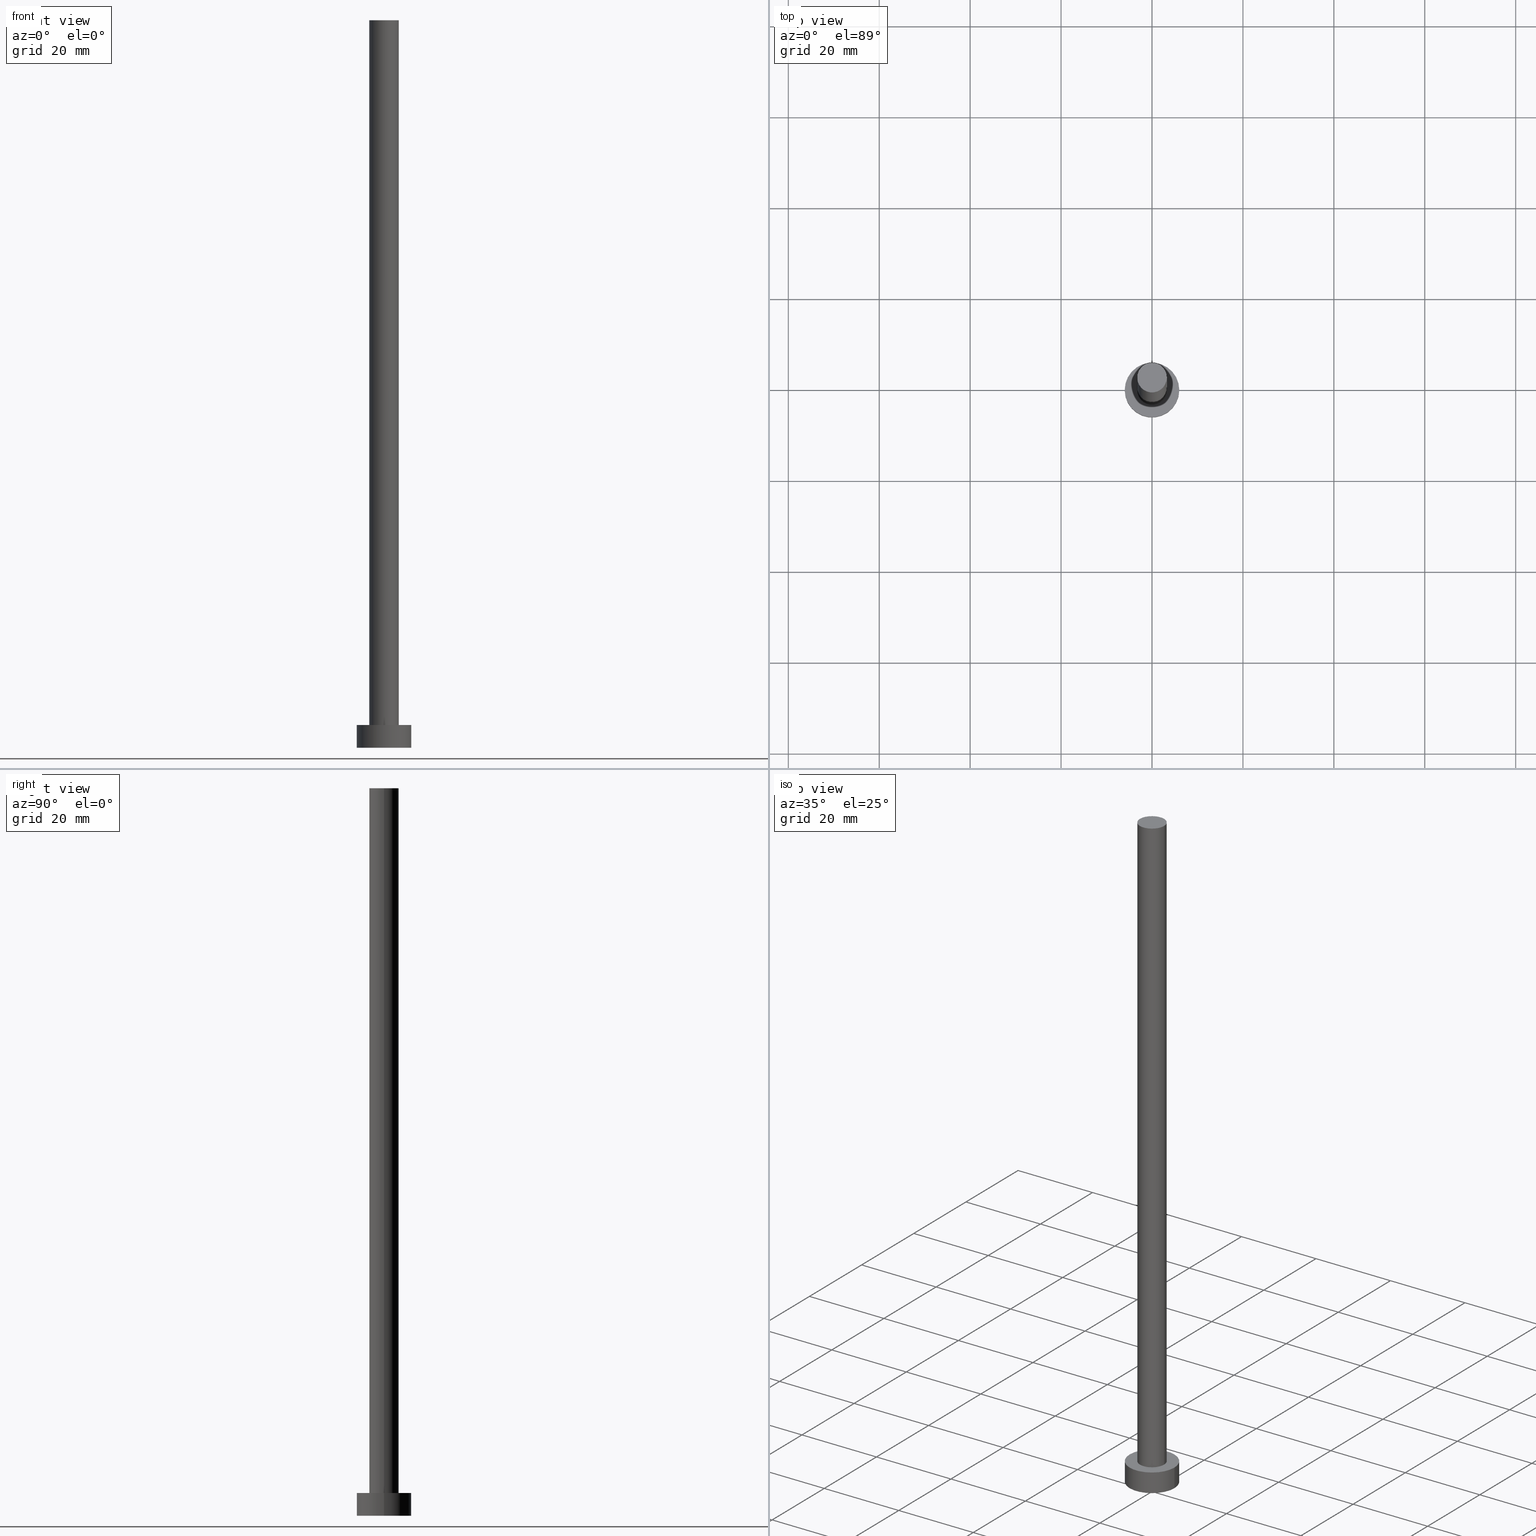
[diagram: canonical four-view strip — front | top / right | iso, engineering-drawing reading convention]
A machine part, canonical four-view strip (front | top / right | iso — engineering-drawing reading convention). The complete STEP part file that produces these views, byte-faithful:
ISO-10303-21;
HEADER;
FILE_DESCRIPTION (( 'STEP AP203' ),
    '1' );
FILE_NAME ('41d8.STEP',
    '2023-02-13T11:48:46',
    ( '' ),
    ( '' ),
    'SwSTEP 2.0',
    'SolidWorks 2019',
    '' );
FILE_SCHEMA (( 'CONFIG_CONTROL_DESIGN' ));
ENDSEC;

DATA;
#1 =( GEOMETRIC_REPRESENTATION_CONTEXT ( 3 ) GLOBAL_UNCERTAINTY_ASSIGNED_CONTEXT ( ( #184 ) ) GLOBAL_UNIT_ASSIGNED_CONTEXT ( ( #197, #194, #140 ) ) REPRESENTATION_CONTEXT ( 'NONE', 'WORKASPACE' ) );
#2 = FACE_OUTER_BOUND ( 'NONE', #61, .T. ) ;
#3 = DIRECTION ( 'NONE',  ( 0.000000000000000000, 0.000000000000000000, 1.000000000000000000 ) ) ;
#4 = CC_DESIGN_PERSON_AND_ORGANIZATION_ASSIGNMENT ( #215, #93, ( #34 ) ) ;
#5 = ADVANCED_BREP_SHAPE_REPRESENTATION ( '41d8', ( #25, #250 ), #1 ) ;
#6 = CARTESIAN_POINT ( 'NONE',  ( 6.000000000000000888, 7.347880794884120722E-16, 0.000000000000000000 ) ) ;
#7 = CALENDAR_DATE ( 2023, 13, 2 ) ;
#8 = CARTESIAN_POINT ( 'NONE',  ( -6.000000000000000888, 0.000000000000000000, 0.000000000000000000 ) ) ;
#9 = APPROVAL ( #39, 'NEUR�EN�' ) ;
#10 = LOCAL_TIME ( 12, 48, 46.00000000000000000, #71 ) ;
#11 = CARTESIAN_POINT ( 'NONE',  ( 0.000000000000000000, 0.000000000000000000, 160.0000000000000000 ) ) ;
#12 = DIRECTION ( 'NONE',  ( 1.000000000000000000, 0.000000000000000000, 0.000000000000000000 ) ) ;
#13 = DIRECTION ( 'NONE',  ( -0.000000000000000000, -0.000000000000000000, -1.000000000000000000 ) ) ;
#14 = APPLICATION_PROTOCOL_DEFINITION ( 'international standard', 'config_control_design', 1994, #239 ) ;
#15 = EDGE_CURVE ( 'NONE', #114, #231, #133, .T. ) ;
#16 = LINE ( 'NONE', #176, #105 ) ;
#17 = AXIS2_PLACEMENT_3D ( 'NONE', #103, #232, #22 ) ;
#18 = CIRCLE ( 'NONE', #144, 6.000000000000000888 ) ;
#19 = ORGANIZATION ( 'NEUR�EN�', 'NEUR�EN�', '' ) ;
#20 = DIRECTION ( 'NONE',  ( -0.000000000000000000, -0.000000000000000000, -1.000000000000000000 ) ) ;
#21 = APPROVAL_ROLE ( '' ) ;
#22 = DIRECTION ( 'NONE',  ( 1.000000000000000000, 0.000000000000000000, 0.000000000000000000 ) ) ;
#23 = ORIENTED_EDGE ( 'NONE', *, *, #65, .T. ) ;
#24 = ORIENTED_EDGE ( 'NONE', *, *, #75, .F. ) ;
#25 = MANIFOLD_SOLID_BREP ( 'P�idat vysunut�m3', #175 ) ;
#26 = DIRECTION ( 'NONE',  ( -1.000000000000000000, 0.000000000000000000, 0.000000000000000000 ) ) ;
#27 = CC_DESIGN_PERSON_AND_ORGANIZATION_ASSIGNMENT ( #185, #203, ( #70 ) ) ;
#28 = CIRCLE ( 'NONE', #124, 3.250000000000000444 ) ;
#29 = COORDINATED_UNIVERSAL_TIME_OFFSET ( 1, 0, .AHEAD. ) ;
#30 = DIRECTION ( 'NONE',  ( -0.000000000000000000, -0.000000000000000000, -1.000000000000000000 ) ) ;
#31 = CIRCLE ( 'NONE', #249, 3.250000000000000444 ) ;
#32 = CARTESIAN_POINT ( 'NONE',  ( 0.000000000000000000, 0.000000000000000000, 160.0000000000000000 ) ) ;
#33 = DIRECTION ( 'NONE',  ( 0.000000000000000000, 0.000000000000000000, 1.000000000000000000 ) ) ;
#34 = PRODUCT_DEFINITION_FORMATION_WITH_SPECIFIED_SOURCE ( 'LIBOVOLN�', '', #36, .NOT_KNOWN. ) ;
#35 = ADVANCED_FACE ( 'NONE', ( #97 ), #212, .T. ) ;
#36 = PRODUCT ( '41d8', '41d8', '', ( #211 ) ) ;
#37 = DATE_AND_TIME ( #252, #178 ) ;
#38 = ORIENTED_EDGE ( 'NONE', *, *, #86, .F. ) ;
#39 = APPROVAL_STATUS ( 'not_yet_approved' ) ;
#40 = VERTEX_POINT ( 'NONE', #66 ) ;
#41 = ORIENTED_EDGE ( 'NONE', *, *, #46, .F. ) ;
#42 = COORDINATED_UNIVERSAL_TIME_OFFSET ( 1, 0, .AHEAD. ) ;
#43 = DIRECTION ( 'NONE',  ( 1.000000000000000000, 0.000000000000000000, -0.000000000000000000 ) ) ;
#44 = AXIS2_PLACEMENT_3D ( 'NONE', #130, #52, #221 ) ;
#45 = PERSON_AND_ORGANIZATION_ROLE ( 'creator' ) ;
#46 = EDGE_CURVE ( 'NONE', #114, #241, #254, .T. ) ;
#47 = CARTESIAN_POINT ( 'NONE',  ( 0.000000000000000000, 0.000000000000000000, 160.0000000000000000 ) ) ;
#48 = EDGE_CURVE ( 'NONE', #84, #127, #149, .T. ) ;
#49 = DATE_TIME_ROLE ( 'classification_date' ) ;
#50 = DIRECTION ( 'NONE',  ( 0.000000000000000000, 0.000000000000000000, 1.000000000000000000 ) ) ;
#51 = CC_DESIGN_APPROVAL ( #9, ( #34 ) ) ;
#52 = DIRECTION ( 'NONE',  ( 0.000000000000000000, 0.000000000000000000, 1.000000000000000000 ) ) ;
#53 = ORIENTED_EDGE ( 'NONE', *, *, #151, .F. ) ;
#54 = DIRECTION ( 'NONE',  ( -1.000000000000000000, 0.000000000000000000, 0.000000000000000000 ) ) ;
#55 = DIRECTION ( 'NONE',  ( 0.000000000000000000, 0.000000000000000000, 1.000000000000000000 ) ) ;
#56 = CARTESIAN_POINT ( 'NONE',  ( 3.250000000000000444, 3.980102097228898231E-16, 5.000000000000000000 ) ) ;
#57 = CARTESIAN_POINT ( 'NONE',  ( -6.000000000000000888, 0.000000000000000000, 5.000000000000000000 ) ) ;
#58 = PERSON_AND_ORGANIZATION ( #136, #19 ) ;
#59 = AXIS2_PLACEMENT_3D ( 'NONE', #112, #223, #198 ) ;
#60 = ADVANCED_FACE ( 'NONE', ( #188 ), #207, .T. ) ;
#61 = EDGE_LOOP ( 'NONE', ( #119, #98, #213, #154 ) ) ;
#62 = APPROVAL_DATE_TIME ( #234, #181 ) ;
#63 = CYLINDRICAL_SURFACE ( 'NONE', #126, 3.250000000000000444 ) ;
#64 = APPROVAL_ROLE ( '' ) ;
#65 = EDGE_CURVE ( 'NONE', #241, #248, #18, .T. ) ;
#66 = CARTESIAN_POINT ( 'NONE',  ( -3.250000000000000444, 0.000000000000000000, 5.000000000000000000 ) ) ;
#67 = DATE_AND_TIME ( #110, #79 ) ;
#68 = VERTEX_POINT ( 'NONE', #56 ) ;
#69 = AXIS2_PLACEMENT_3D ( 'NONE', #229, #3, #89 ) ;
#70 = SECURITY_CLASSIFICATION ( '', '', #128 ) ;
#71 = COORDINATED_UNIVERSAL_TIME_OFFSET ( 1, 0, .AHEAD. ) ;
#72 = PRODUCT_DEFINITION_SHAPE ( 'NONE', 'NONE',  #156 ) ;
#73 = FACE_OUTER_BOUND ( 'NONE', #95, .T. ) ;
#74 = CARTESIAN_POINT ( 'NONE',  ( 0.000000000000000000, 0.000000000000000000, 0.000000000000000000 ) ) ;
#75 = EDGE_CURVE ( 'NONE', #84, #40, #16, .T. ) ;
#76 = CYLINDRICAL_SURFACE ( 'NONE', #116, 6.000000000000000888 ) ;
#77 = CC_DESIGN_DATE_AND_TIME_ASSIGNMENT ( #67, #166, ( #156 ) ) ;
#78 = PLANE ( 'NONE',  #164 ) ;
#79 = LOCAL_TIME ( 12, 48, 46.00000000000000000, #238 ) ;
#80 = DIRECTION ( 'NONE',  ( 0.000000000000000000, 0.000000000000000000, 1.000000000000000000 ) ) ;
#81 = PERSON_AND_ORGANIZATION ( #136, #19 ) ;
#82 = COORDINATED_UNIVERSAL_TIME_OFFSET ( 1, 0, .AHEAD. ) ;
#83 = APPROVAL_PERSON_ORGANIZATION ( #118, #181, #64 ) ;
#84 = VERTEX_POINT ( 'NONE', #222 ) ;
#85 = CARTESIAN_POINT ( 'NONE',  ( -6.000000000000000888, 0.000000000000000000, 5.000000000000000000 ) ) ;
#86 = EDGE_CURVE ( 'NONE', #127, #84, #31, .T. ) ;
#87 = DIRECTION ( 'NONE',  ( 1.000000000000000000, 0.000000000000000000, 0.000000000000000000 ) ) ;
#88 = AXIS2_PLACEMENT_3D ( 'NONE', #74, #50, #247 ) ;
#89 = DIRECTION ( 'NONE',  ( 1.000000000000000000, 0.000000000000000000, 0.000000000000000000 ) ) ;
#90 = CC_DESIGN_PERSON_AND_ORGANIZATION_ASSIGNMENT ( #81, #210, ( #36 ) ) ;
#91 = AXIS2_PLACEMENT_3D ( 'NONE', #109, #235, #43 ) ;
#92 = APPROVAL_PERSON_ORGANIZATION ( #243, #217, #199 ) ;
#93 = PERSON_AND_ORGANIZATION_ROLE ( 'design_supplier' ) ;
#94 = CARTESIAN_POINT ( 'NONE',  ( 0.000000000000000000, 0.000000000000000000, 0.000000000000000000 ) ) ;
#95 = EDGE_LOOP ( 'NONE', ( #237, #226 ) ) ;
#96 = EDGE_CURVE ( 'NONE', #231, #114, #142, .T. ) ;
#97 = FACE_OUTER_BOUND ( 'NONE', #137, .T. ) ;
#98 = ORIENTED_EDGE ( 'NONE', *, *, #48, .F. ) ;
#99 = AXIS2_PLACEMENT_3D ( 'NONE', #225, #55, #12 ) ;
#100 = ORIENTED_EDGE ( 'NONE', *, *, #251, .T. ) ;
#101 = DIRECTION ( 'NONE',  ( 1.000000000000000000, 0.000000000000000000, 0.000000000000000000 ) ) ;
#102 = CC_DESIGN_DATE_AND_TIME_ASSIGNMENT ( #150, #49, ( #70 ) ) ;
#103 = CARTESIAN_POINT ( 'NONE',  ( 0.000000000000000000, 0.000000000000000000, 160.0000000000000000 ) ) ;
#104 = ORIENTED_EDGE ( 'NONE', *, *, #120, .T. ) ;
#105 = VECTOR ( 'NONE', #13, 1000.000000000000000 ) ;
#106 = CC_DESIGN_SECURITY_CLASSIFICATION ( #70, ( #34 ) ) ;
#107 = CARTESIAN_POINT ( 'NONE',  ( 3.250000000000000444, 3.980102097228898231E-16, 160.0000000000000000 ) ) ;
#108 = ORIENTED_EDGE ( 'NONE', *, *, #143, .F. ) ;
#109 = CARTESIAN_POINT ( 'NONE',  ( 0.000000000000000000, 0.000000000000000000, 160.0000000000000000 ) ) ;
#110 = CALENDAR_DATE ( 2023, 13, 2 ) ;
#111 = AXIS2_PLACEMENT_3D ( 'NONE', #134, #220, #206 ) ;
#112 = CARTESIAN_POINT ( 'NONE',  ( 0.000000000000000000, 0.000000000000000000, 5.000000000000000000 ) ) ;
#113 = DATE_AND_TIME ( #7, #161 ) ;
#114 = VERTEX_POINT ( 'NONE', #85 ) ;
#115 = DIRECTION ( 'NONE',  ( 0.000000000000000000, 0.000000000000000000, 1.000000000000000000 ) ) ;
#116 = AXIS2_PLACEMENT_3D ( 'NONE', #173, #30, #54 ) ;
#117 = EDGE_LOOP ( 'NONE', ( #204, #53 ) ) ;
#118 = PERSON_AND_ORGANIZATION ( #136, #19 ) ;
#119 = ORIENTED_EDGE ( 'NONE', *, *, #120, .F. ) ;
#120 = EDGE_CURVE ( 'NONE', #127, #68, #216, .T. ) ;
#121 = DIRECTION ( 'NONE',  ( -0.000000000000000000, -0.000000000000000000, -1.000000000000000000 ) ) ;
#122 = PERSON_AND_ORGANIZATION ( #136, #19 ) ;
#123 = VECTOR ( 'NONE', #20, 1000.000000000000000 ) ;
#124 = AXIS2_PLACEMENT_3D ( 'NONE', #214, #163, #87 ) ;
#125 = APPROVAL_STATUS ( 'not_yet_approved' ) ;
#126 = AXIS2_PLACEMENT_3D ( 'NONE', #47, #121, #26 ) ;
#127 = VERTEX_POINT ( 'NONE', #107 ) ;
#128 = SECURITY_CLASSIFICATION_LEVEL ( 'unclassified' ) ;
#129 = DIRECTION ( 'NONE',  ( -0.000000000000000000, -0.000000000000000000, -1.000000000000000000 ) ) ;
#130 = CARTESIAN_POINT ( 'NONE',  ( 0.000000000000000000, 0.000000000000000000, 0.000000000000000000 ) ) ;
#131 = EDGE_CURVE ( 'NONE', #40, #68, #28, .T. ) ;
#132 = EDGE_LOOP ( 'NONE', ( #38, #104, #174, #24 ) ) ;
#133 = CIRCLE ( 'NONE', #99, 6.000000000000000888 ) ;
#134 = CARTESIAN_POINT ( 'NONE',  ( 0.000000000000000000, 0.000000000000000000, 5.000000000000000000 ) ) ;
#135 = PRODUCT_RELATED_PRODUCT_CATEGORY ( 'detail', '', ( #36 ) ) ;
#136 = PERSON ( 'NEUR�EN�', 'NEUR�EN�', 'NEUR�EN�', ('NEUR�EN�'), ('NEUR�EN�'), ('NEUR�EN�') ) ;
#137 = EDGE_LOOP ( 'NONE', ( #158, #160 ) ) ;
#138 = ORIENTED_EDGE ( 'NONE', *, *, #96, .T. ) ;
#139 = APPROVAL_DATE_TIME ( #37, #9 ) ;
#140 =( NAMED_UNIT ( * ) SI_UNIT ( $, .STERADIAN. ) SOLID_ANGLE_UNIT ( ) );
#141 = EDGE_LOOP ( 'NONE', ( #171, #186, #100, #41 ) ) ;
#142 = CIRCLE ( 'NONE', #69, 6.000000000000000888 ) ;
#143 = EDGE_CURVE ( 'NONE', #231, #248, #236, .T. ) ;
#144 = AXIS2_PLACEMENT_3D ( 'NONE', #94, #115, #190 ) ;
#145 = LOCAL_TIME ( 12, 48, 46.00000000000000000, #42 ) ;
#146 = ADVANCED_FACE ( 'NONE', ( #2 ), #63, .T. ) ;
#147 = CALENDAR_DATE ( 2023, 13, 2 ) ;
#148 = PLANE ( 'NONE',  #44 ) ;
#149 = CIRCLE ( 'NONE', #17, 3.250000000000000444 ) ;
#150 = DATE_AND_TIME ( #147, #10 ) ;
#151 = EDGE_CURVE ( 'NONE', #68, #40, #200, .T. ) ;
#152 = FACE_BOUND ( 'NONE', #117, .T. ) ;
#153 = EDGE_LOOP ( 'NONE', ( #108, #192, #177, #23 ) ) ;
#154 = ORIENTED_EDGE ( 'NONE', *, *, #131, .T. ) ;
#155 = CC_DESIGN_APPROVAL ( #217, ( #70 ) ) ;
#156 = PRODUCT_DEFINITION ( 'NEZN�M�', '', #34, #187 ) ;
#157 = PERSON_AND_ORGANIZATION ( #136, #19 ) ;
#158 = ORIENTED_EDGE ( 'NONE', *, *, #48, .T. ) ;
#159 = APPLICATION_PROTOCOL_DEFINITION ( 'international standard', 'config_control_design', 1994, #253 ) ;
#160 = ORIENTED_EDGE ( 'NONE', *, *, #86, .T. ) ;
#161 = LOCAL_TIME ( 12, 48, 46.00000000000000000, #29 ) ;
#162 = APPROVAL_STATUS ( 'not_yet_approved' ) ;
#163 = DIRECTION ( 'NONE',  ( 0.000000000000000000, 0.000000000000000000, 1.000000000000000000 ) ) ;
#164 = AXIS2_PLACEMENT_3D ( 'NONE', #209, #33, #218 ) ;
#165 = CARTESIAN_POINT ( 'NONE',  ( 3.250000000000000444, 3.980102097228898231E-16, 160.0000000000000000 ) ) ;
#166 = DATE_TIME_ROLE ( 'creation_date' ) ;
#167 = ADVANCED_FACE ( 'NONE', ( #152, #244 ), #78, .T. ) ;
#168 = APPROVAL_DATE_TIME ( #113, #217 ) ;
#169 = SHAPE_DEFINITION_REPRESENTATION ( #72, #5 ) ;
#170 = FACE_OUTER_BOUND ( 'NONE', #153, .T. ) ;
#171 = ORIENTED_EDGE ( 'NONE', *, *, #96, .F. ) ;
#172 = DIRECTION ( 'NONE',  ( 1.000000000000000000, 0.000000000000000000, 0.000000000000000000 ) ) ;
#173 = CARTESIAN_POINT ( 'NONE',  ( 0.000000000000000000, 0.000000000000000000, 5.000000000000000000 ) ) ;
#174 = ORIENTED_EDGE ( 'NONE', *, *, #151, .T. ) ;
#175 = CLOSED_SHELL ( 'NONE', ( #60, #233, #242, #167, #219, #146, #35 ) ) ;
#176 = CARTESIAN_POINT ( 'NONE',  ( -3.250000000000000444, 0.000000000000000000, 160.0000000000000000 ) ) ;
#177 = ORIENTED_EDGE ( 'NONE', *, *, #46, .T. ) ;
#178 = LOCAL_TIME ( 12, 48, 46.00000000000000000, #82 ) ;
#179 = CARTESIAN_POINT ( 'NONE',  ( 6.000000000000000888, 7.347880794884120722E-16, 5.000000000000000000 ) ) ;
#180 = DIRECTION ( 'NONE',  ( -0.000000000000000000, -0.000000000000000000, -1.000000000000000000 ) ) ;
#181 = APPROVAL ( #162, 'NEUR�EN�' ) ;
#182 = CALENDAR_DATE ( 2023, 13, 2 ) ;
#183 = DIRECTION ( 'NONE',  ( -0.000000000000000000, -0.000000000000000000, -1.000000000000000000 ) ) ;
#184 = UNCERTAINTY_MEASURE_WITH_UNIT (LENGTH_MEASURE( 1.000000000000000082E-05 ), #197, 'distance_accuracy_value', 'NONE');
#185 = PERSON_AND_ORGANIZATION ( #136, #19 ) ;
#186 = ORIENTED_EDGE ( 'NONE', *, *, #143, .T. ) ;
#187 = DESIGN_CONTEXT ( 'detailed design', #253, 'design' ) ;
#188 = FACE_OUTER_BOUND ( 'NONE', #132, .T. ) ;
#189 = CIRCLE ( 'NONE', #88, 6.000000000000000888 ) ;
#190 = DIRECTION ( 'NONE',  ( 1.000000000000000000, 0.000000000000000000, 0.000000000000000000 ) ) ;
#191 = DIRECTION ( 'NONE',  ( -1.000000000000000000, 0.000000000000000000, 0.000000000000000000 ) ) ;
#192 = ORIENTED_EDGE ( 'NONE', *, *, #15, .F. ) ;
#193 = VECTOR ( 'NONE', #183, 1000.000000000000000 ) ;
#194 =( NAMED_UNIT ( * ) PLANE_ANGLE_UNIT ( ) SI_UNIT ( $, .RADIAN. ) );
#195 = APPROVAL_PERSON_ORGANIZATION ( #58, #9, #21 ) ;
#196 = ORIENTED_EDGE ( 'NONE', *, *, #15, .T. ) ;
#197 =( LENGTH_UNIT ( ) NAMED_UNIT ( * ) SI_UNIT ( .MILLI., .METRE. ) );
#198 = DIRECTION ( 'NONE',  ( 1.000000000000000000, 0.000000000000000000, 0.000000000000000000 ) ) ;
#199 = APPROVAL_ROLE ( '' ) ;
#200 = CIRCLE ( 'NONE', #59, 3.250000000000000444 ) ;
#201 = CC_DESIGN_PERSON_AND_ORGANIZATION_ASSIGNMENT ( #122, #45, ( #156 ) ) ;
#202 = CARTESIAN_POINT ( 'NONE',  ( 6.000000000000000888, 7.347880794884120722E-16, 5.000000000000000000 ) ) ;
#203 = PERSON_AND_ORGANIZATION_ROLE ( 'classification_officer' ) ;
#204 = ORIENTED_EDGE ( 'NONE', *, *, #131, .F. ) ;
#205 = DIRECTION ( 'NONE',  ( 0.000000000000000000, 0.000000000000000000, 1.000000000000000000 ) ) ;
#206 = DIRECTION ( 'NONE',  ( -1.000000000000000000, 0.000000000000000000, 0.000000000000000000 ) ) ;
#207 = CYLINDRICAL_SURFACE ( 'NONE', #255, 3.250000000000000444 ) ;
#208 = VECTOR ( 'NONE', #180, 1000.000000000000000 ) ;
#209 = CARTESIAN_POINT ( 'NONE',  ( 0.000000000000000000, 0.000000000000000000, 5.000000000000000000 ) ) ;
#210 = PERSON_AND_ORGANIZATION_ROLE ( 'design_owner' ) ;
#211 = MECHANICAL_CONTEXT ( 'NONE', #239, 'mechanical' ) ;
#212 = PLANE ( 'NONE',  #91 ) ;
#213 = ORIENTED_EDGE ( 'NONE', *, *, #75, .T. ) ;
#214 = CARTESIAN_POINT ( 'NONE',  ( 0.000000000000000000, 0.000000000000000000, 5.000000000000000000 ) ) ;
#215 = PERSON_AND_ORGANIZATION ( #136, #19 ) ;
#216 = LINE ( 'NONE', #165, #208 ) ;
#217 = APPROVAL ( #125, 'NEUR�EN�' ) ;
#218 = DIRECTION ( 'NONE',  ( 1.000000000000000000, 0.000000000000000000, -0.000000000000000000 ) ) ;
#219 = ADVANCED_FACE ( 'NONE', ( #73 ), #148, .F. ) ;
#220 = DIRECTION ( 'NONE',  ( -0.000000000000000000, -0.000000000000000000, -1.000000000000000000 ) ) ;
#221 = DIRECTION ( 'NONE',  ( 1.000000000000000000, 0.000000000000000000, -0.000000000000000000 ) ) ;
#222 = CARTESIAN_POINT ( 'NONE',  ( -3.250000000000000444, 0.000000000000000000, 160.0000000000000000 ) ) ;
#223 = DIRECTION ( 'NONE',  ( 0.000000000000000000, 0.000000000000000000, 1.000000000000000000 ) ) ;
#224 = EDGE_LOOP ( 'NONE', ( #196, #138 ) ) ;
#225 = CARTESIAN_POINT ( 'NONE',  ( 0.000000000000000000, 0.000000000000000000, 5.000000000000000000 ) ) ;
#226 = ORIENTED_EDGE ( 'NONE', *, *, #251, .F. ) ;
#227 = CARTESIAN_POINT ( 'NONE',  ( 0.000000000000000000, 0.000000000000000000, 0.000000000000000000 ) ) ;
#228 = CC_DESIGN_APPROVAL ( #181, ( #156 ) ) ;
#229 = CARTESIAN_POINT ( 'NONE',  ( 0.000000000000000000, 0.000000000000000000, 5.000000000000000000 ) ) ;
#230 = PERSON_AND_ORGANIZATION_ROLE ( 'creator' ) ;
#231 = VERTEX_POINT ( 'NONE', #202 ) ;
#232 = DIRECTION ( 'NONE',  ( 0.000000000000000000, 0.000000000000000000, 1.000000000000000000 ) ) ;
#233 = ADVANCED_FACE ( 'NONE', ( #246 ), #76, .T. ) ;
#234 = DATE_AND_TIME ( #182, #145 ) ;
#235 = DIRECTION ( 'NONE',  ( 0.000000000000000000, 0.000000000000000000, 1.000000000000000000 ) ) ;
#236 = LINE ( 'NONE', #179, #193 ) ;
#237 = ORIENTED_EDGE ( 'NONE', *, *, #65, .F. ) ;
#238 = COORDINATED_UNIVERSAL_TIME_OFFSET ( 1, 0, .AHEAD. ) ;
#239 = APPLICATION_CONTEXT ( 'configuration controlled 3d designs of mechanical parts and assemblies' ) ;
#240 = CC_DESIGN_PERSON_AND_ORGANIZATION_ASSIGNMENT ( #157, #230, ( #34 ) ) ;
#241 = VERTEX_POINT ( 'NONE', #8 ) ;
#242 = ADVANCED_FACE ( 'NONE', ( #170 ), #245, .T. ) ;
#243 = PERSON_AND_ORGANIZATION ( #136, #19 ) ;
#244 = FACE_OUTER_BOUND ( 'NONE', #224, .T. ) ;
#245 = CYLINDRICAL_SURFACE ( 'NONE', #111, 6.000000000000000888 ) ;
#246 = FACE_OUTER_BOUND ( 'NONE', #141, .T. ) ;
#247 = DIRECTION ( 'NONE',  ( 1.000000000000000000, 0.000000000000000000, 0.000000000000000000 ) ) ;
#248 = VERTEX_POINT ( 'NONE', #6 ) ;
#249 = AXIS2_PLACEMENT_3D ( 'NONE', #11, #80, #172 ) ;
#250 = AXIS2_PLACEMENT_3D ( 'NONE', #227, #205, #101 ) ;
#251 = EDGE_CURVE ( 'NONE', #248, #241, #189, .T. ) ;
#252 = CALENDAR_DATE ( 2023, 13, 2 ) ;
#253 = APPLICATION_CONTEXT ( 'configuration controlled 3d designs of mechanical parts and assemblies' ) ;
#254 = LINE ( 'NONE', #57, #123 ) ;
#255 = AXIS2_PLACEMENT_3D ( 'NONE', #32, #129, #191 ) ;
ENDSEC;
END-ISO-10303-21;
